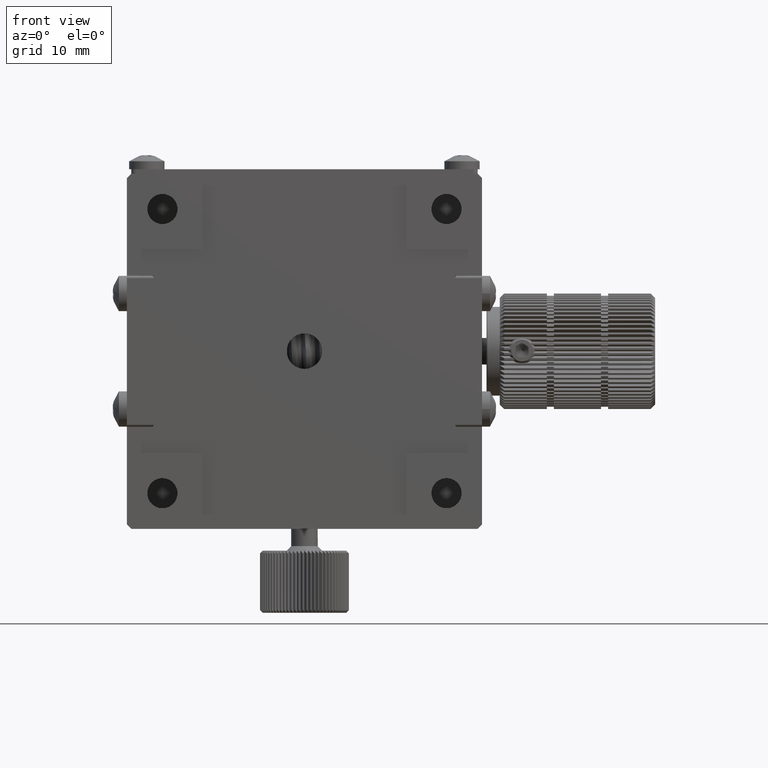
[diagram: clean part render]
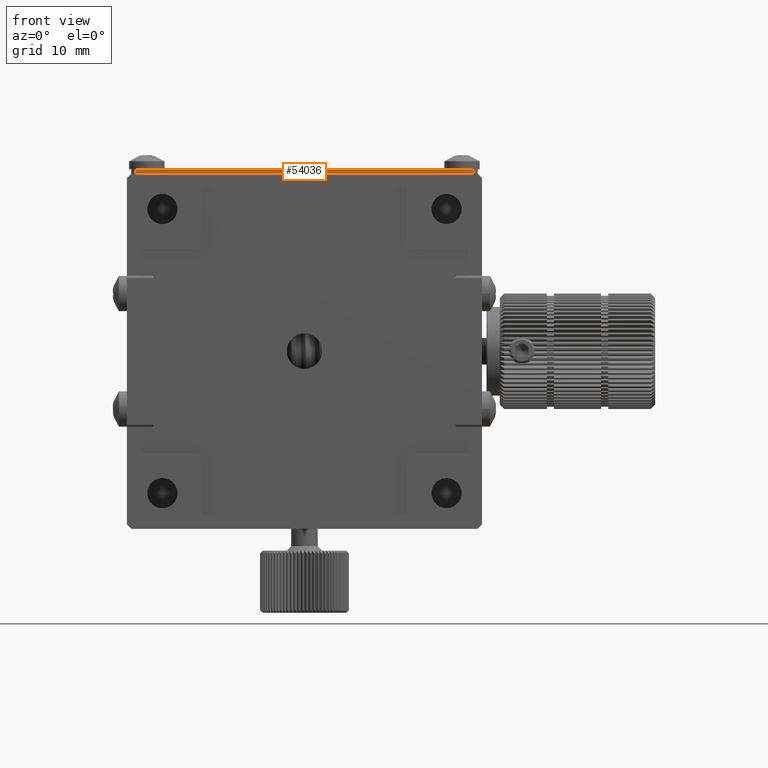
[diagram: same view with one face highlighted and labeled with its STEP entity id]
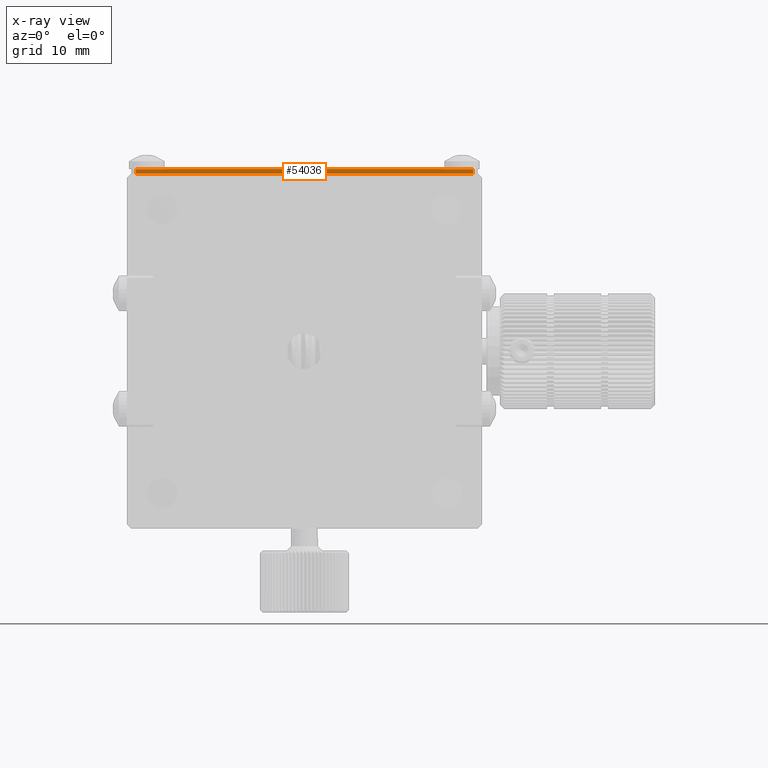
[diagram: x-ray of the same camera — body ghosted, the highlighted face saturated]
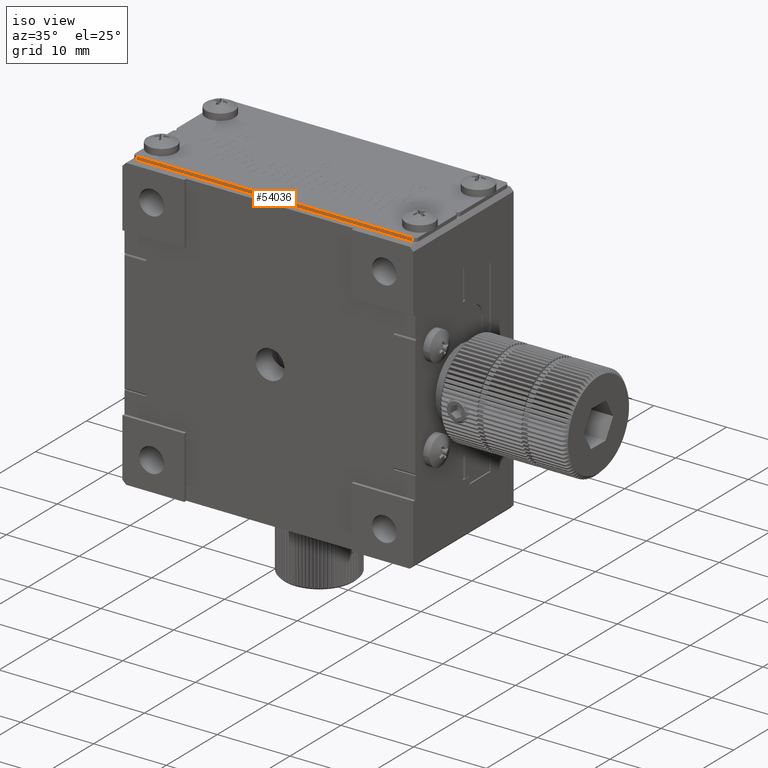
[diagram: same view with one face highlighted and labeled with its STEP entity id]
A machine part, front view. The second image highlights one B-rep face of the part: STEP entity #54036.
The next image is the same camera in x-ray: the body ghosted, the highlighted face saturated — about 0% of this face is hidden behind the body in this view.
A second angle (iso view) of the same face is appended — the face is thin or edge-on in the first view.
In plain terms, the highlighted planar face has unit normal (-0, 1, 0).
Its self-contained STEP definition (entity closure, byte-faithful):
#252 = ORIENTED_EDGE ( 'NONE', *, *, #20568, .F. ) ;
#1047 = VERTEX_POINT ( 'NONE', #51888 ) ;
#1999 = DIRECTION ( 'NONE',  ( -5.259020551576894849E-33, 1.000000000000000000, 3.491481338843141244E-15 ) ) ;
#3893 = EDGE_CURVE ( 'NONE', #1047, #32998, #37972, .T. ) ;
#5585 = VERTEX_POINT ( 'NONE', #11123 ) ;
#9367 = DIRECTION ( 'NONE',  ( 0.000000000000000000, -3.491481338843141244E-15, 1.000000000000000000 ) ) ;
#11123 = CARTESIAN_POINT ( 'NONE',  ( -52.94169290550050988, -8.842566008158575741, 48.53274884354321728 ) ) ;
#13081 = VECTOR ( 'NONE', #27581, 1000.000000000000000 ) ;
#14957 = CARTESIAN_POINT ( 'NONE',  ( -14.94169290550051343, -8.842566008158575741, 48.53274884354321728 ) ) ;
#15516 = EDGE_LOOP ( 'NONE', ( #28959, #28782, #252, #53442 ) ) ;
#20568 = EDGE_CURVE ( 'NONE', #1047, #5585, #34837, .T. ) ;
#22774 = PLANE ( 'NONE',  #43689 ) ;
#26485 = DIRECTION ( 'NONE',  ( 1.000000000000000000, 5.259020551576894849E-33, 1.836177211642329098E-47 ) ) ;
#27581 = DIRECTION ( 'NONE',  ( 1.000000000000000000, 7.574306106185697085E-45, -2.169367489357782465E-30 ) ) ;
#28677 = VERTEX_POINT ( 'NONE', #14957 ) ;
#28782 = ORIENTED_EDGE ( 'NONE', *, *, #47552, .F. ) ;
#28959 = ORIENTED_EDGE ( 'NONE', *, *, #31713, .F. ) ;
#31713 = EDGE_CURVE ( 'NONE', #28677, #32998, #46251, .T. ) ;
#32998 = VERTEX_POINT ( 'NONE', #35050 ) ;
#33181 = DIRECTION ( 'NONE',  ( -2.859620781426167795E-30, 3.491481338843141638E-15, -1.000000000000000000 ) ) ;
#34837 = LINE ( 'NONE', #60251, #60358 ) ;
#35050 = CARTESIAN_POINT ( 'NONE',  ( -14.94169290550051343, -8.842566008158575741, 48.03274884354322438 ) ) ;
#37972 = LINE ( 'NONE', #53013, #13081 ) ;
#38634 = VECTOR ( 'NONE', #26485, 1000.000000000000000 ) ;
#42560 = LINE ( 'NONE', #47883, #38634 ) ;
#42873 = DIRECTION ( 'NONE',  ( 0.000000000000000000, -3.491481338843141244E-15, 1.000000000000000000 ) ) ;
#43689 = AXIS2_PLACEMENT_3D ( 'NONE', #47870, #1999, #42873 ) ;
#46251 = LINE ( 'NONE', #61643, #59574 ) ;
#46865 = FACE_OUTER_BOUND ( 'NONE', #15516, .T. ) ;
#47552 = EDGE_CURVE ( 'NONE', #5585, #28677, #42560, .T. ) ;
#47870 = CARTESIAN_POINT ( 'NONE',  ( -53.44169290550052409, -8.842566008158575741, 48.53274884354321728 ) ) ;
#47883 = CARTESIAN_POINT ( 'NONE',  ( -53.44169290550052409, -8.842566008158575741, 48.53274884354321728 ) ) ;
#51888 = CARTESIAN_POINT ( 'NONE',  ( -52.94169290550050988, -8.842566008158575741, 48.03274884354322438 ) ) ;
#53013 = CARTESIAN_POINT ( 'NONE',  ( -33.94169290550050988, -8.842566008158581070, 48.03274884354321728 ) ) ;
#53442 = ORIENTED_EDGE ( 'NONE', *, *, #3893, .T. ) ;
#54036 = ADVANCED_FACE ( 'NONE', ( #46865 ), #22774, .F. ) ;
#59574 = VECTOR ( 'NONE', #33181, 1000.000000000000000 ) ;
#60251 = CARTESIAN_POINT ( 'NONE',  ( -52.94169290550050988, -8.842566008158575741, 48.53274884354321728 ) ) ;
#60358 = VECTOR ( 'NONE', #9367, 1000.000000000000000 ) ;
#61643 = CARTESIAN_POINT ( 'NONE',  ( -14.94169290550051343, -8.842566008158575741, 48.53274884354321728 ) ) ;